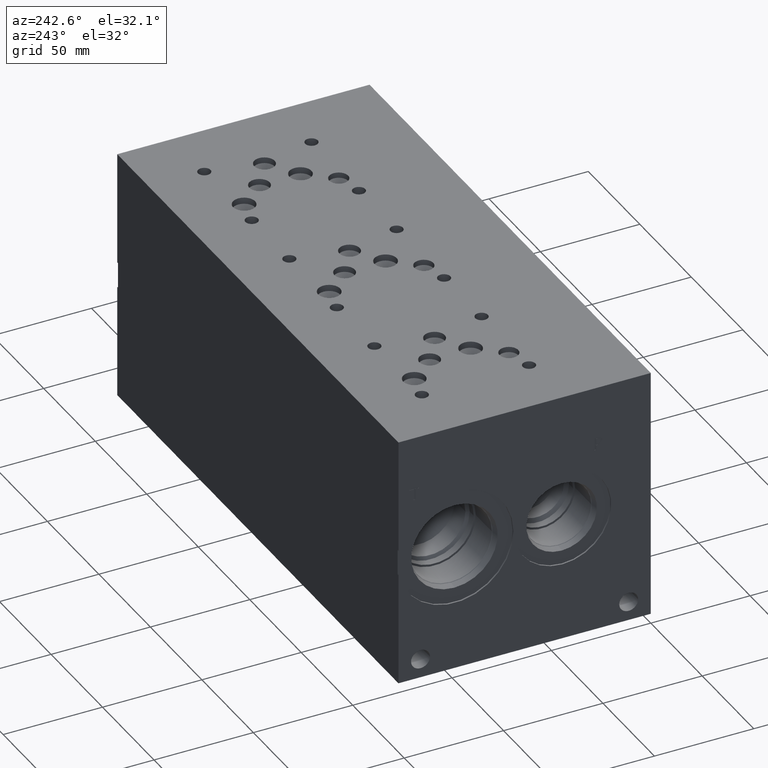
[diagram: clean part render]
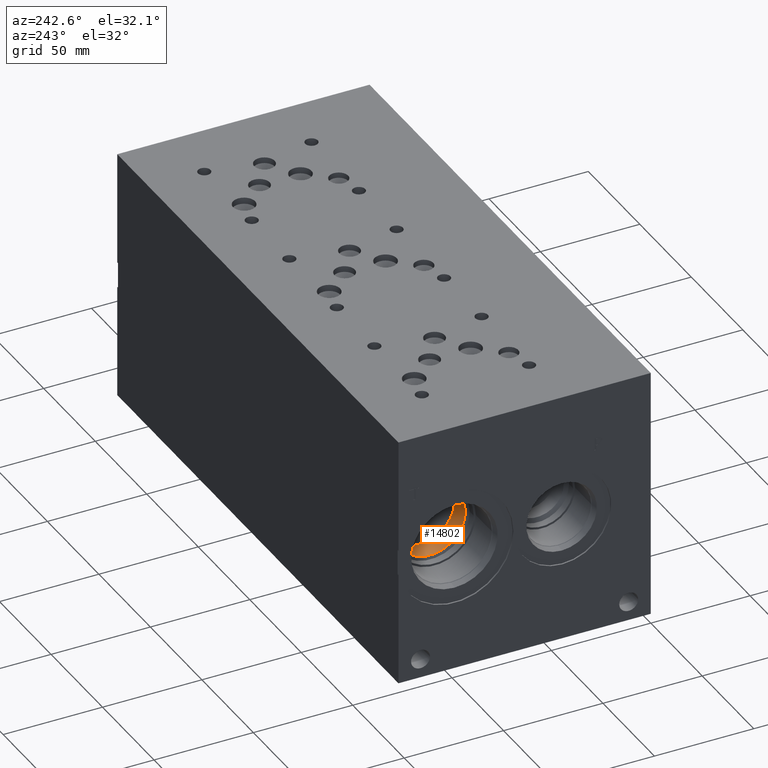
[diagram: same view with one face highlighted and labeled with its STEP entity id]
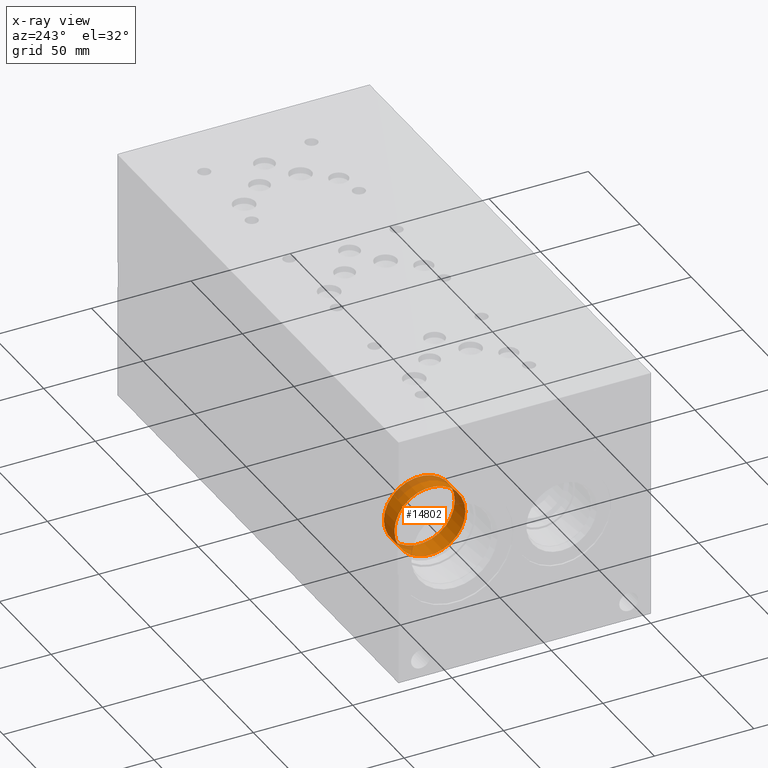
[diagram: x-ray of the same camera — body ghosted, the highlighted face saturated]
A machine part, auxiliary view. The second image highlights one B-rep face of the part: STEP entity #14802.
The next image is the same camera in x-ray: the body ghosted, the highlighted face saturated — about 19% of this face is hidden behind the body in this view.
In plain terms, the highlighted cylindrical surface (bore or boss wall) has radius 17.8562 mm, axis along (-1, 0, 0).
Its self-contained STEP definition (entity closure, byte-faithful):
#29=CYLINDRICAL_SURFACE('',#15480,17.8562);
#280=CIRCLE('',#15478,17.8562);
#281=CIRCLE('',#15479,17.8562);
#282=CIRCLE('',#15481,17.8562);
#1881=FACE_OUTER_BOUND('',#2733,.T.);
#2733=EDGE_LOOP('',(#12281,#12282,#12283,#12284,#12285));
#4136=LINE('',#25026,#5447);
#5447=VECTOR('',#18066,17.8562);
#6692=VERTEX_POINT('',#25017);
#6693=VERTEX_POINT('',#25018);
#6695=VERTEX_POINT('',#25024);
#8643=EDGE_CURVE('',#6692,#6693,#280,.T.);
#8645=EDGE_CURVE('',#6693,#6692,#281,.T.);
#8646=EDGE_CURVE('',#6695,#6695,#282,.T.);
#8647=EDGE_CURVE('',#6695,#6693,#4136,.T.);
#12281=ORIENTED_EDGE('',*,*,#8646,.F.);
#12282=ORIENTED_EDGE('',*,*,#8647,.T.);
#12283=ORIENTED_EDGE('',*,*,#8643,.F.);
#12284=ORIENTED_EDGE('',*,*,#8645,.F.);
#12285=ORIENTED_EDGE('',*,*,#8647,.F.);
#14802=ADVANCED_FACE('',(#1881),#29,.F.);
#15478=AXIS2_PLACEMENT_3D('',#25019,#18057,#18058);
#15479=AXIS2_PLACEMENT_3D('',#25022,#18060,#18061);
#15480=AXIS2_PLACEMENT_3D('',#25023,#18062,#18063);
#15481=AXIS2_PLACEMENT_3D('',#25025,#18064,#18065);
#18057=DIRECTION('center_axis',(-1.,0.,0.));
#18058=DIRECTION('ref_axis',(0.,1.,0.));
#18060=DIRECTION('center_axis',(-1.,0.,0.));
#18061=DIRECTION('ref_axis',(0.,1.,0.));
#18062=DIRECTION('center_axis',(-1.,0.,0.));
#18063=DIRECTION('ref_axis',(0.,1.,0.));
#18064=DIRECTION('center_axis',(1.,0.,0.));
#18065=DIRECTION('ref_axis',(0.,1.,0.));
#18066=DIRECTION('',(1.,0.,0.));
#25017=CARTESIAN_POINT('',(34.88939,116.2812,63.5));
#25018=CARTESIAN_POINT('',(34.88939,80.5688,63.5));
#25019=CARTESIAN_POINT('Origin',(34.88939,98.425,63.5));
#25022=CARTESIAN_POINT('Origin',(34.88939,98.425,63.5));
#25023=CARTESIAN_POINT('Origin',(17.444695,98.425,63.5));
#25024=CARTESIAN_POINT('',(24.5801077938717,80.5688,63.5));
#25025=CARTESIAN_POINT('Origin',(24.5801077938717,98.425,63.5));
#25026=CARTESIAN_POINT('',(17.444695,80.5688,63.5));